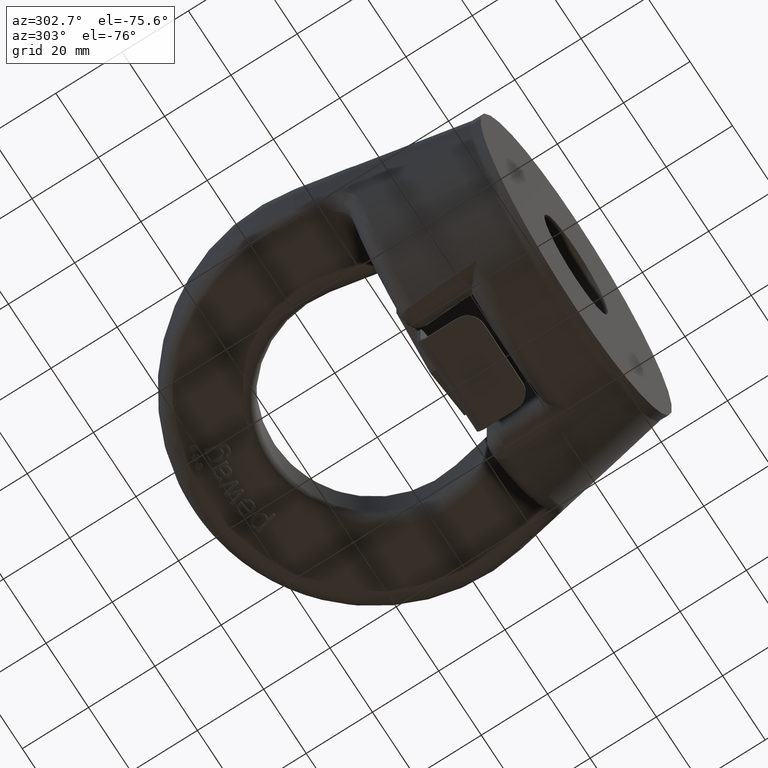
[diagram: clean part render]
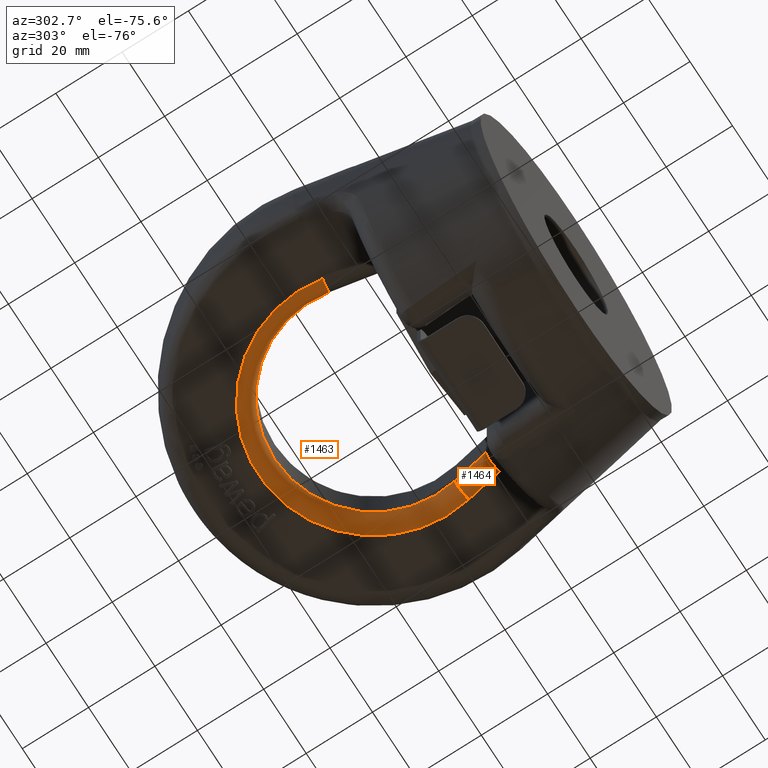
[diagram: same view with one multi-face feature highlighted, each face labeled with its STEP entity id]
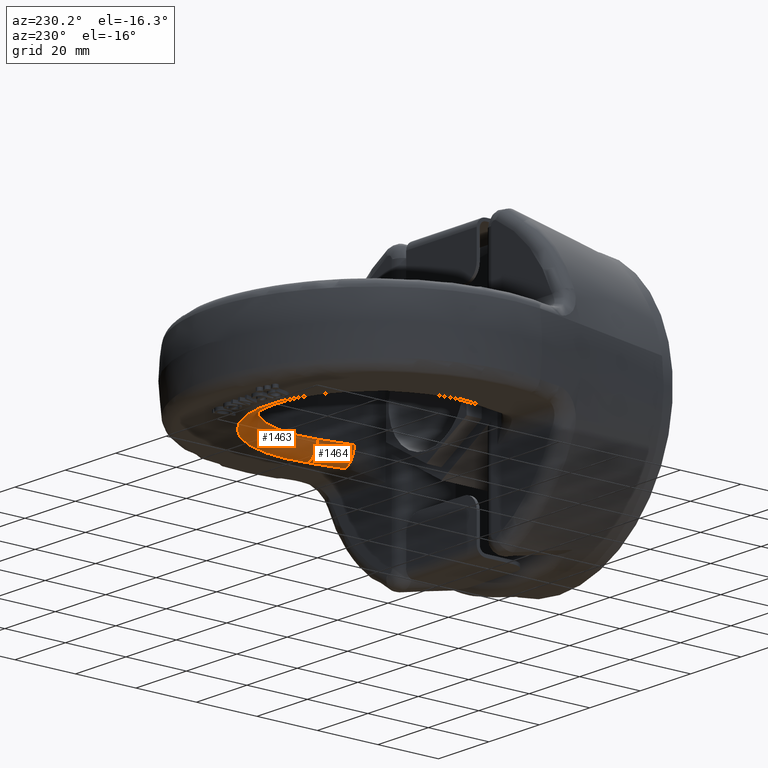
[diagram: same view with one multi-face feature highlighted, each face labeled with its STEP entity id]
A machine part, auxiliary view. The highlighted faces form ONE feature: a constant-radius fillet chain: 2 tangent blend faces with common blend radius 5 mm. The faces share edges in the B-rep.
A second angle (auxiliary view) of the same feature is appended — it is thin or edge-on in the first view.
Their STEP definitions:
[1] entity #1463 (Torus):
#1023=TOROIDAL_SURFACE('',#5276,35.,5.);
#1230=FACE_OUTER_BOUND('',#1997,.T.);
#1463=ADVANCED_FACE('',(#1230),#1023,.T.);
#1694=CIRCLE('',#5124,30.);
#1724=CIRCLE('',#5236,35.);
#1739=CIRCLE('',#5273,5.);
#1740=CIRCLE('',#5275,5.);
#1997=EDGE_LOOP('',(#3428,#3429,#3430,#3431));
#3428=ORIENTED_EDGE('',*,*,#4646,.T.);
#3429=ORIENTED_EDGE('',*,*,#4584,.F.);
#3430=ORIENTED_EDGE('',*,*,#4647,.F.);
#3431=ORIENTED_EDGE('',*,*,#4345,.F.);
#3955=VERTEX_POINT('',#6666);
#3958=VERTEX_POINT('',#6671);
#4105=VERTEX_POINT('',#8193);
#4106=VERTEX_POINT('',#8194);
#4345=EDGE_CURVE('',#3958,#3955,#1694,.T.);
#4584=EDGE_CURVE('',#4105,#4106,#1724,.T.);
#4646=EDGE_CURVE('',#3958,#4106,#1739,.T.);
#4647=EDGE_CURVE('',#3955,#4105,#1740,.T.);
#5124=AXIS2_PLACEMENT_3D('',#6672,#5458,#5459);
#5236=AXIS2_PLACEMENT_3D('',#8192,#5821,#5822);
#5273=AXIS2_PLACEMENT_3D('',#8628,#5916,#5917);
#5275=AXIS2_PLACEMENT_3D('',#8630,#5920,#5921);
#5276=AXIS2_PLACEMENT_3D('',#8631,#5922,#5923);
#5458=DIRECTION('',(2.34291072916505E-15,1.19636101791504E-16,-1.));
#5459=DIRECTION('',(-3.08148791101958E-31,1.,1.15648231731787E-16));
#5821=DIRECTION('',(-2.34291072916505E-15,-1.19636101791504E-16,1.));
#5822=DIRECTION('',(-3.52170046973666E-31,1.,9.91270557701032E-17));
#5916=DIRECTION('',(-0.185944657523515,0.982560219191914,8.04483670788507E-17));
#5917=DIRECTION('',(0.982560219191914,0.185944657523515,2.25514051876985E-15));
#5920=DIRECTION('',(-0.185944657523514,-0.982560219191915,-4.35651733142761E-16));
#5921=DIRECTION('',(-0.982560219191915,0.185944657523514,-2.25514051876985E-15));
#5922=DIRECTION('',(-2.34291072916505E-15,-1.19636101791504E-16,1.));
#5923=DIRECTION('',(-3.08148791101958E-31,1.,1.30104260698261E-16));
#6666=CARTESIAN_POINT('',(29.4768065757575,55.4216602742946,-7.49999999999994));
#6671=CARTESIAN_POINT('',(-29.4768065757574,55.4216602742946,-7.50000000000008));
#6672=CARTESIAN_POINT('',(1.77618946741009E-14,61.0000000000001,-7.50000000000001));
#8192=CARTESIAN_POINT('',(2.94764483199261E-14,61.0000000000001,-12.5));
#8193=CARTESIAN_POINT('',(34.389607671717,54.491936986677,-12.4999999999999));
#8194=CARTESIAN_POINT('',(-34.389607671717,54.491936986677,-12.5000000000001));
#8628=CARTESIAN_POINT('',(-34.389607671717,54.491936986677,-7.50000000000009));
#8630=CARTESIAN_POINT('',(34.389607671717,54.491936986677,-7.49999999999993));
#8631=CARTESIAN_POINT('',(1.77618946741009E-14,61.0000000000001,-7.50000000000001));
[2] entity #1464 (Cylinder):
#1087=CYLINDRICAL_SURFACE('',#5278,5.);
#1231=FACE_OUTER_BOUND('',#1998,.T.);
#1464=ADVANCED_FACE('',(#1231),#1087,.T.);
#1740=CIRCLE('',#5275,5.);
#1741=CIRCLE('',#5277,5.);
#1998=EDGE_LOOP('',(#3432,#3433,#3434,#3435));
#2166=LINE('',#6837,#2436);
#2253=LINE('',#8213,#2551);
#2436=VECTOR('',#5509,1.);
#2551=VECTOR('',#5828,1.);
#3432=ORIENTED_EDGE('',*,*,#4647,.T.);
#3433=ORIENTED_EDGE('',*,*,#4591,.F.);
#3434=ORIENTED_EDGE('',*,*,#4648,.F.);
#3435=ORIENTED_EDGE('',*,*,#4385,.F.);
#3955=VERTEX_POINT('',#6666);
#3996=VERTEX_POINT('',#6838);
#4105=VERTEX_POINT('',#8193);
#4112=VERTEX_POINT('',#8212);
#4385=EDGE_CURVE('',#3955,#3996,#2166,.T.);
#4591=EDGE_CURVE('',#4112,#4105,#2253,.T.);
#4647=EDGE_CURVE('',#3955,#4105,#1740,.T.);
#4648=EDGE_CURVE('',#3996,#4112,#1741,.T.);
#5275=AXIS2_PLACEMENT_3D('',#8630,#5920,#5921);
#5277=AXIS2_PLACEMENT_3D('',#8632,#5924,#5925);
#5278=AXIS2_PLACEMENT_3D('',#8633,#5926,#5927);
#5509=DIRECTION('',(-0.185944657523515,-0.982560219191914,-5.5320140754229E-16));
#5828=DIRECTION('',(0.185944657523515,0.982560219191914,5.5320140754229E-16));
#5920=DIRECTION('',(-0.185944657523514,-0.982560219191915,-4.35651733142761E-16));
#5921=DIRECTION('',(-0.982560219191915,0.185944657523514,-2.25514051876985E-15));
#5924=DIRECTION('',(-0.185944657523515,-0.982560219191915,-1.77601683031957E-16));
#5925=DIRECTION('',(-0.982560219191914,0.185944657523515,-2.25514051876985E-15));
#5926=DIRECTION('',(-0.185944657523515,-0.982560219191914,-5.5320140754229E-16));
#5927=DIRECTION('',(-0.982560219191915,0.185944657523515,-2.25514051876985E-15));
#6666=CARTESIAN_POINT('',(29.4768065757575,55.4216602742946,-7.49999999999994));
#6837=CARTESIAN_POINT('',(27.315313909384,44.,-7.49999999999995));
#6838=CARTESIAN_POINT('',(27.4912594391652,44.9297232876176,-7.49999999999995));
#8193=CARTESIAN_POINT('',(34.389607671717,54.491936986677,-12.4999999999999));
#8212=CARTESIAN_POINT('',(32.4040605351248,44.,-12.4999999999999));
#8213=CARTESIAN_POINT('',(34.389607671717,54.491936986677,-12.4999999999999));
#8630=CARTESIAN_POINT('',(34.389607671717,54.491936986677,-7.49999999999993));
#8632=CARTESIAN_POINT('',(32.4040605351248,44.,-7.49999999999994));
#8633=CARTESIAN_POINT('',(44.294427503511,106.830531031806,-7.4999999999999));